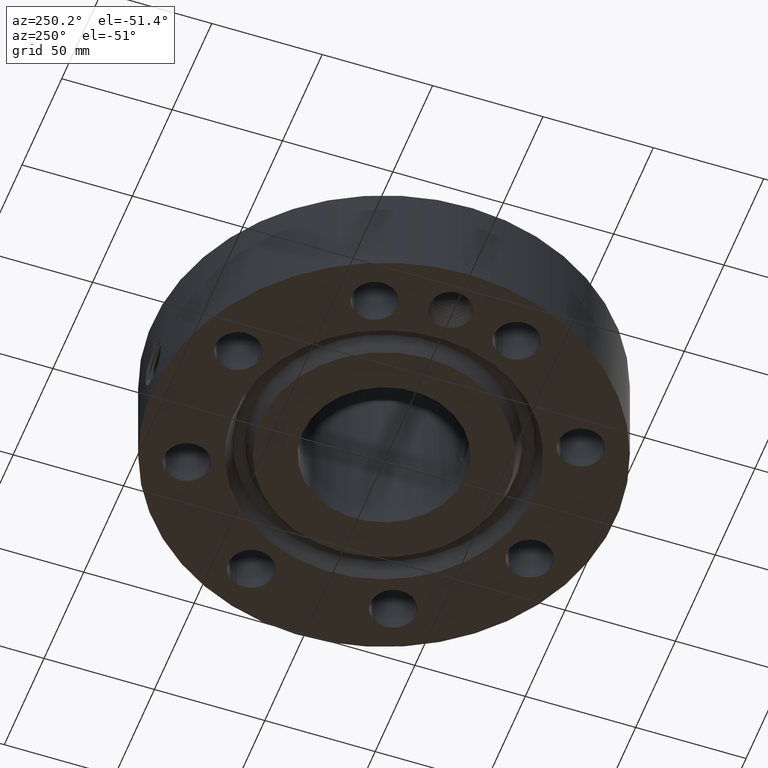
[diagram: clean part render]
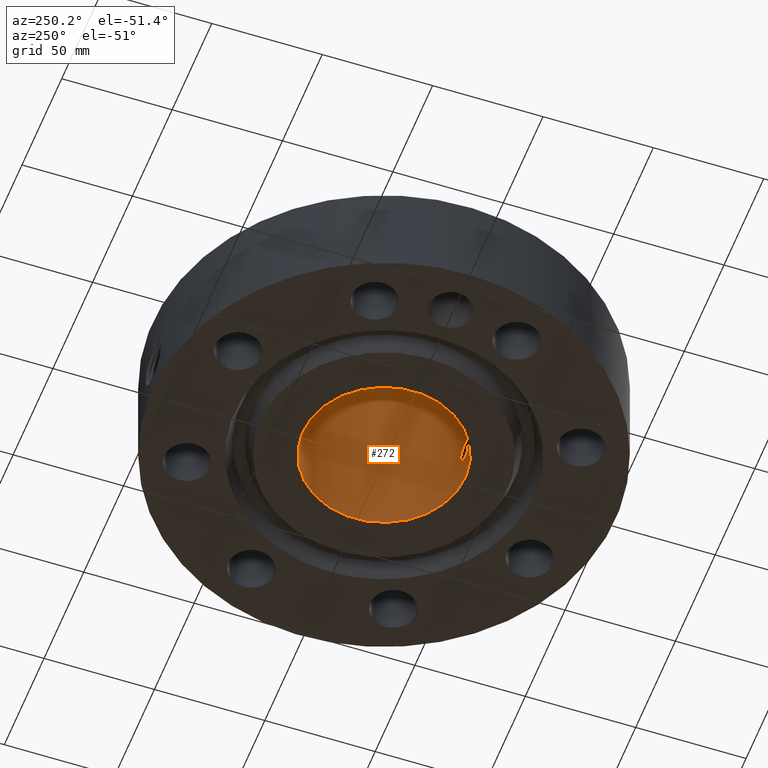
[diagram: same view with one face highlighted and labeled with its STEP entity id]
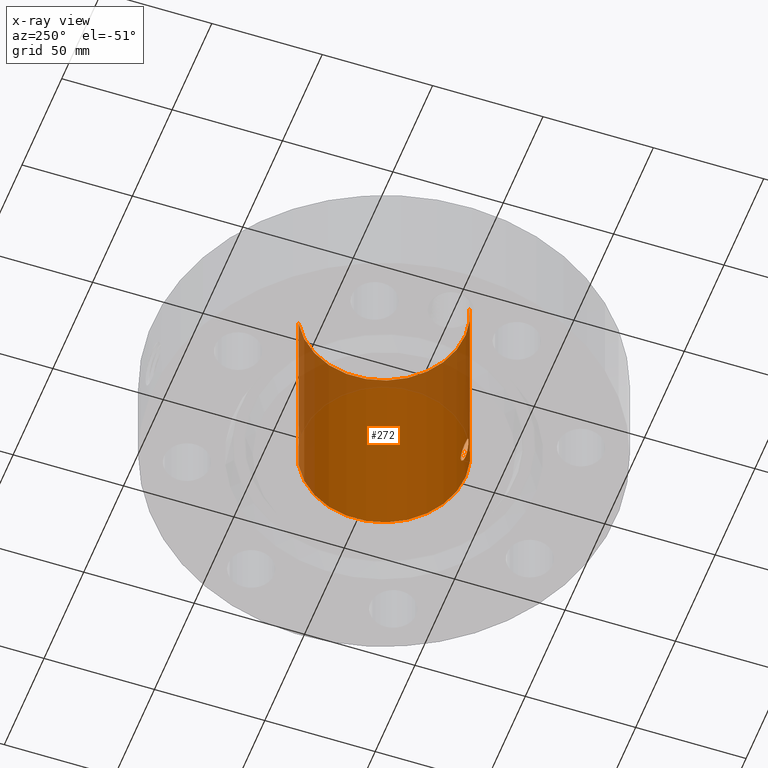
[diagram: x-ray of the same camera — body ghosted, the highlighted face saturated]
A machine part, auxiliary view. The second image highlights one B-rep face of the part: STEP entity #272.
The next image is the same camera in x-ray: the body ghosted, the highlighted face saturated — about 25% of this face is hidden behind the body in this view.
In plain terms, the highlighted cylindrical surface (partial cylindrical patch) has radius 36.83 mm, axis along (0, 0, -1).
Its self-contained STEP definition (entity closure, byte-faithful):
#232=AXIS2_PLACEMENT_3D('Cylinder Axis2P3D',#229,#230,#231) ;
#236=AXIS2_PLACEMENT_3D('Circle Axis2P3D',#234,#235,$) ;
#252=AXIS2_PLACEMENT_3D('Circle Axis2P3D',#250,#251,$) ;
#81=CARTESIAN_POINT('Control Point',(0.16674068676,-1.44038104104,0.658909147668)) ;
#82=CARTESIAN_POINT('Control Point',(0.155853923545,-1.44164130921,0.638981061273)) ;
#83=CARTESIAN_POINT('Control Point',(0.141996394728,-1.44314123905,0.620691068061)) ;
#84=CARTESIAN_POINT('Control Point',(0.125490527962,-1.44473002396,0.604617598636)) ;
#85=CARTESIAN_POINT('Control Point',(0.078932422326,-1.44840024366,0.571252337646)) ;
#86=CARTESIAN_POINT('Control Point',(0.0226598024439,-1.45044586691,0.556661650099)) ;
#87=CARTESIAN_POINT('Control Point',(-0.0125762470496,-1.45058029713,0.55574237355)) ;
#88=CARTESIAN_POINT('Control Point',(-0.0866432712634,-1.44840984346,0.570889564216)) ;
#89=CARTESIAN_POINT('Control Point',(-0.145947054032,-1.4431150318,0.618592110825)) ;
#90=CARTESIAN_POINT('Control Point',(-0.170365609853,-1.44006401665,0.65225545203)) ;
#91=CARTESIAN_POINT('Control Point',(-0.193202939362,-1.43708588353,0.71291948346)) ;
#92=CARTESIAN_POINT('Control Point',(-0.190291479714,-1.4374548603,0.776316921369)) ;
#93=CARTESIAN_POINT('Control Point',(-0.185696733654,-1.43808039828,0.799178061498)) ;
#94=CARTESIAN_POINT('Control Point',(-0.177733048215,-1.43910854866,0.820969469662)) ;
#95=CARTESIAN_POINT('Control Point',(-0.16674068676,-1.44038104104,0.841090852338)) ;
#96=CARTESIAN_POINT('Vertex',(0.16674068676,-1.44038104104,0.658909147668)) ;
#98=CARTESIAN_POINT('Vertex',(-0.16674068676,-1.44038104104,0.841090852338)) ;
#206=CARTESIAN_POINT('Control Point',(-0.16674068676,-1.44038104104,0.841090852338)) ;
#207=CARTESIAN_POINT('Control Point',(-0.155853923541,-1.44164130921,0.861018938739)) ;
#208=CARTESIAN_POINT('Control Point',(-0.14199639472,-1.44314123905,0.879308931956)) ;
#209=CARTESIAN_POINT('Control Point',(-0.125490527971,-1.44473002396,0.895382401364)) ;
#210=CARTESIAN_POINT('Control Point',(-0.0789324223289,-1.44840024366,0.92874766236)) ;
#211=CARTESIAN_POINT('Control Point',(-0.0226598024391,-1.45044586691,0.943338349908)) ;
#212=CARTESIAN_POINT('Control Point',(0.0125762470503,-1.45058029713,0.944257626456)) ;
#213=CARTESIAN_POINT('Control Point',(0.0866432712647,-1.44840984346,0.929110435789)) ;
#214=CARTESIAN_POINT('Control Point',(0.145947054033,-1.4431150318,0.88140788918)) ;
#215=CARTESIAN_POINT('Control Point',(0.170365609855,-1.44006401665,0.847744547973)) ;
#216=CARTESIAN_POINT('Control Point',(0.193202939363,-1.43708588353,0.787080516542)) ;
#217=CARTESIAN_POINT('Control Point',(0.190291479714,-1.4374548603,0.723683078632)) ;
#218=CARTESIAN_POINT('Control Point',(0.185696733655,-1.43808039828,0.70082193851)) ;
#219=CARTESIAN_POINT('Control Point',(0.177733048215,-1.43910854866,0.679030530345)) ;
#220=CARTESIAN_POINT('Control Point',(0.16674068676,-1.44038104104,0.658909147668)) ;
#229=CARTESIAN_POINT('Axis2P3D Location',(0.,0.,1.90650000001)) ;
#234=CARTESIAN_POINT('Axis2P3D Location',(0.,0.,3.81300000002)) ;
#238=CARTESIAN_POINT('Vertex',(0.695167030979,1.27249471475,3.81300000002)) ;
#240=CARTESIAN_POINT('Vertex',(-0.695167030979,-1.27249471475,3.81300000002)) ;
#243=CARTESIAN_POINT('Line Origine',(0.695167030979,1.27249471475,1.90650000001)) ;
#247=CARTESIAN_POINT('Vertex',(0.695167030979,1.27249471475,-1.39870617276E-015)) ;
#250=CARTESIAN_POINT('Axis2P3D Location',(0.,0.,-2.23792987641E-015)) ;
#254=CARTESIAN_POINT('Vertex',(-0.695167030979,-1.27249471475,-1.39870617276E-015)) ;
#257=CARTESIAN_POINT('Line Origine',(-0.695167030979,-1.27249471475,1.90650000001)) ;
#230=DIRECTION('Axis2P3D Direction',(0.,0.,-0.0393700787402)) ;
#231=DIRECTION('Axis2P3D XDirection',(-0.0188750212049,-0.0345504945626,0.)) ;
#235=DIRECTION('Axis2P3D Direction',(0.,0.,-0.0393700787402)) ;
#244=DIRECTION('Vector Direction',(0.,0.,-0.0393700787402)) ;
#251=DIRECTION('Axis2P3D Direction',(0.,0.,-0.0393700787402)) ;
#258=DIRECTION('Vector Direction',(0.,0.,-0.0393700787402)) ;
#245=VECTOR('Line Direction',#244,0.0393700787402) ;
#259=VECTOR('Line Direction',#258,0.0393700787402) ;
#263=ORIENTED_EDGE('',*,*,#242,.F.) ;
#264=ORIENTED_EDGE('',*,*,#249,.T.) ;
#265=ORIENTED_EDGE('',*,*,#256,.T.) ;
#266=ORIENTED_EDGE('',*,*,#261,.F.) ;
#269=ORIENTED_EDGE('',*,*,#100,.F.) ;
#270=ORIENTED_EDGE('',*,*,#221,.F.) ;
#271=FACE_BOUND('',#268,.T.) ;
#272=ADVANCED_FACE('PartBody',(#267,#271),#233,.F.) ;
#80=B_SPLINE_CURVE_WITH_KNOTS('',5,(#81,#82,#83,#84,#85,#86,#87,#88,#89,#90,#91,#92,#93,#94,#95),.UNSPECIFIED.,.F.,.U.,(6,3,3,3,6),(0.,4.08473745372,10.1952038069,17.3395947637,21.4639529088),.UNSPECIFIED.) ;
#205=B_SPLINE_CURVE_WITH_KNOTS('',5,(#206,#207,#208,#209,#210,#211,#212,#213,#214,#215,#216,#217,#218,#219,#220),.UNSPECIFIED.,.F.,.U.,(6,3,3,3,6),(0.,4.08473745492,10.1952038083,17.3395947651,21.4639529103),.UNSPECIFIED.) ;
#237=CIRCLE('generated circle',#236,1.45000000001) ;
#253=CIRCLE('generated circle',#252,1.45000000001) ;
#233=CYLINDRICAL_SURFACE('generated cylinder',#232,1.45000000001) ;
#100=EDGE_CURVE('',#97,#99,#80,.T.) ;
#221=EDGE_CURVE('',#99,#97,#205,.T.) ;
#242=EDGE_CURVE('',#239,#241,#237,.T.) ;
#249=EDGE_CURVE('',#239,#248,#246,.T.) ;
#256=EDGE_CURVE('',#248,#255,#253,.T.) ;
#261=EDGE_CURVE('',#241,#255,#260,.T.) ;
#262=EDGE_LOOP('',(#263,#264,#265,#266)) ;
#268=EDGE_LOOP('',(#269,#270)) ;
#267=FACE_OUTER_BOUND('',#262,.T.) ;
#246=LINE('Line',#243,#245) ;
#260=LINE('Line',#257,#259) ;
#97=VERTEX_POINT('',#96) ;
#99=VERTEX_POINT('',#98) ;
#239=VERTEX_POINT('',#238) ;
#241=VERTEX_POINT('',#240) ;
#248=VERTEX_POINT('',#247) ;
#255=VERTEX_POINT('',#254) ;